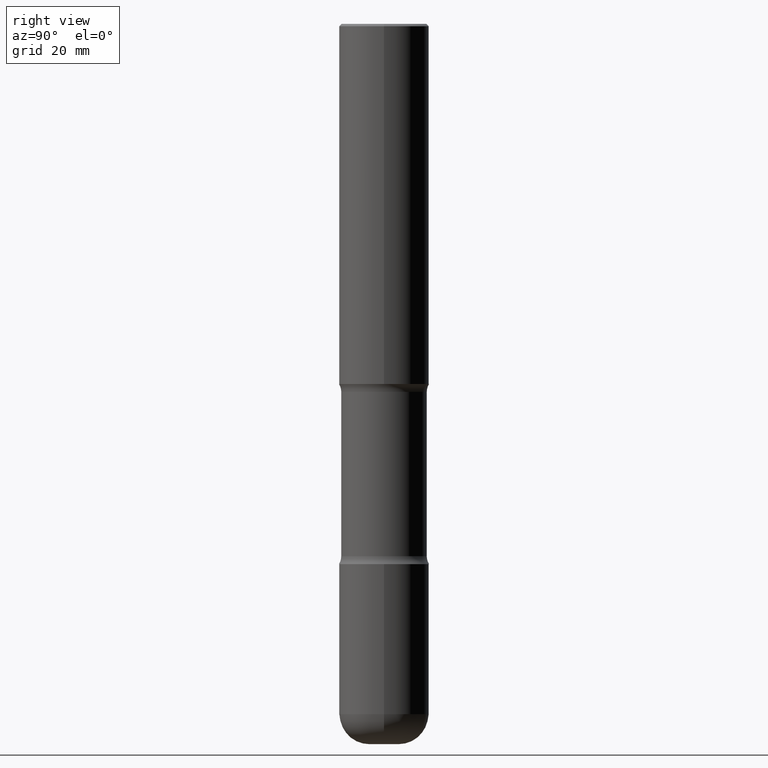
[diagram: clean part render]
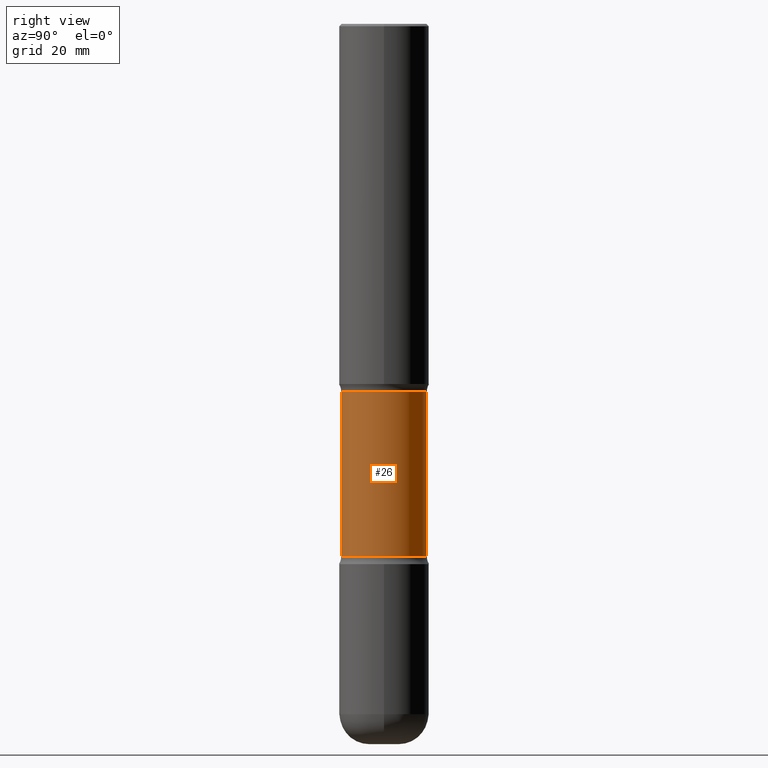
[diagram: same view with one face highlighted and labeled with its STEP entity id]
A machine part, right view. The second image highlights one B-rep face of the part: STEP entity #26.
In plain terms, the highlighted cylindrical surface (partial cylindrical patch) has radius 9.0488 mm, axis along (0, -0, -1).
Its self-contained STEP definition (entity closure, byte-faithful):
#1 = CARTESIAN_POINT ( 'NONE',  ( -2.508369580435144205E-15, -0.3562500000000108358, -3.065847835955328282 ) ) ;
#11 = ORIENTED_EDGE ( 'NONE', *, *, #130, .T. ) ;
#18 = ORIENTED_EDGE ( 'NONE', *, *, #316, .T. ) ;
#26 = ADVANCED_FACE ( 'NONE', ( #209 ), #544, .T. ) ;
#31 = AXIS2_PLACEMENT_3D ( 'NONE', #403, #144, #362 ) ;
#35 = DIRECTION ( 'NONE',  ( 2.508247471065963170E-29, -3.401578717594097873E-15, -1.000000000000000000 ) ) ;
#37 = CARTESIAN_POINT ( 'NONE',  ( 7.407401089244291879E-29, -1.083328454578828421E-14, -3.065847835955329614 ) ) ;
#41 = VECTOR ( 'NONE', #166, 39.37007874015748143 ) ;
#56 = VERTEX_POINT ( 'NONE', #369 ) ;
#78 = CARTESIAN_POINT ( 'NONE',  ( 1.476698083443205790E-28, -2.081403410118529621E-14, -5.999999999999999112 ) ) ;
#83 = VERTEX_POINT ( 'NONE', #326 ) ;
#116 = CARTESIAN_POINT ( 'NONE',  ( -2.444052411705960129E-15, -0.3562500000000208278, -5.999999999999998224 ) ) ;
#130 = EDGE_CURVE ( 'NONE', #276, #56, #506, .T. ) ;
#144 = DIRECTION ( 'NONE',  ( 2.508247471065963170E-29, -3.401578717594097873E-15, -1.000000000000000000 ) ) ;
#149 = EDGE_LOOP ( 'NONE', ( #18, #11, #264, #496 ) ) ;
#158 = DIRECTION ( 'NONE',  ( 6.982962677686265133E-15, 1.000000000000000000, -3.067338098149347905E-15 ) ) ;
#166 = DIRECTION ( 'NONE',  ( 2.508247471065963170E-29, -3.401578717594097873E-15, -1.000000000000000000 ) ) ;
#209 = FACE_OUTER_BOUND ( 'NONE', #149, .T. ) ;
#213 = DIRECTION ( 'NONE',  ( 2.508247471065963170E-29, -3.401578717594097873E-15, -1.000000000000000000 ) ) ;
#264 = ORIENTED_EDGE ( 'NONE', *, *, #494, .F. ) ;
#276 = VERTEX_POINT ( 'NONE', #1 ) ;
#316 = EDGE_CURVE ( 'NONE', #428, #276, #557, .T. ) ;
#319 = CARTESIAN_POINT ( 'NONE',  ( 2.487680453925806274E-15, 0.3562499999999891309, -3.065847835955330503 ) ) ;
#323 = EDGE_CURVE ( 'NONE', #428, #83, #381, .T. ) ;
#326 = CARTESIAN_POINT ( 'NONE',  ( 2.487680453925840195E-15, 0.3562499999999844680, -4.434152164044670386 ) ) ;
#362 = DIRECTION ( 'NONE',  ( 6.982962677686265133E-15, 1.000000000000000000, -3.067338098149347905E-15 ) ) ;
#369 = CARTESIAN_POINT ( 'NONE',  ( -2.508369580435107128E-15, -0.3562500000000154987, -4.434152164044668609 ) ) ;
#381 = LINE ( 'NONE', #558, #41 ) ;
#403 = CARTESIAN_POINT ( 'NONE',  ( 1.083944695982298980E-28, -1.548767942740887449E-14, -4.434152164044669497 ) ) ;
#423 = VECTOR ( 'NONE', #35, 39.37007874015748143 ) ;
#428 = VERTEX_POINT ( 'NONE', #319 ) ;
#446 = AXIS2_PLACEMENT_3D ( 'NONE', #37, #213, #471 ) ;
#454 = DIRECTION ( 'NONE',  ( 2.508247471065963170E-29, -3.401578717594097873E-15, -1.000000000000000000 ) ) ;
#455 = CIRCLE ( 'NONE', #31, 0.3562500000000000111 ) ;
#471 = DIRECTION ( 'NONE',  ( 6.982962677686265133E-15, 1.000000000000000000, -3.067338098149347905E-15 ) ) ;
#472 = AXIS2_PLACEMENT_3D ( 'NONE', #78, #454, #158 ) ;
#494 = EDGE_CURVE ( 'NONE', #83, #56, #455, .T. ) ;
#496 = ORIENTED_EDGE ( 'NONE', *, *, #323, .F. ) ;
#506 = LINE ( 'NONE', #116, #423 ) ;
#544 = CYLINDRICAL_SURFACE ( 'NONE', #472, 0.3562500000000000111 ) ;
#557 = CIRCLE ( 'NONE', #446, 0.3562500000000000111 ) ;
#558 = CARTESIAN_POINT ( 'NONE',  ( 2.487680453925879638E-15, 0.3562499999999791389, -6.000000000000000888 ) ) ;